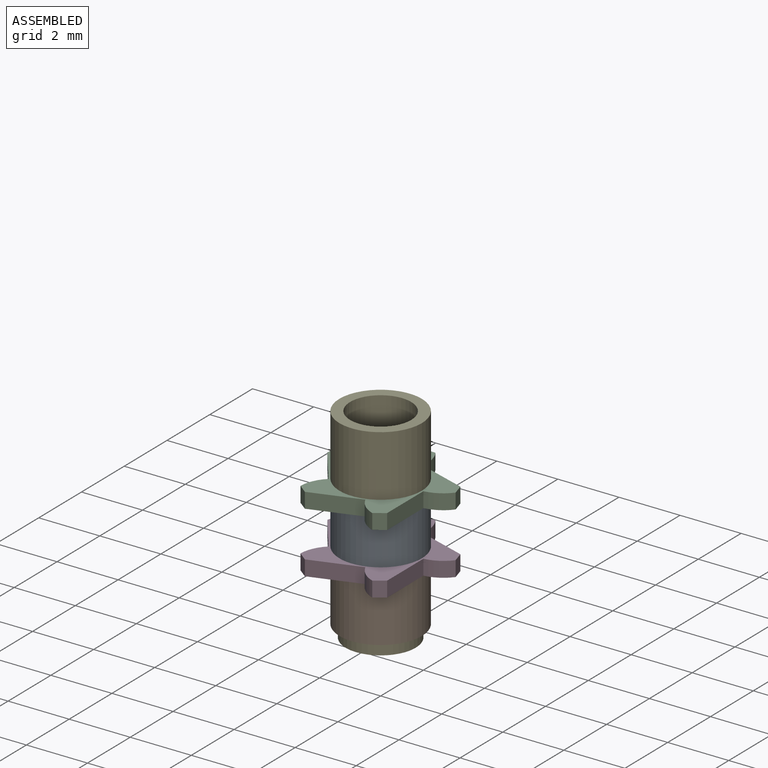
[diagram: assembled view]
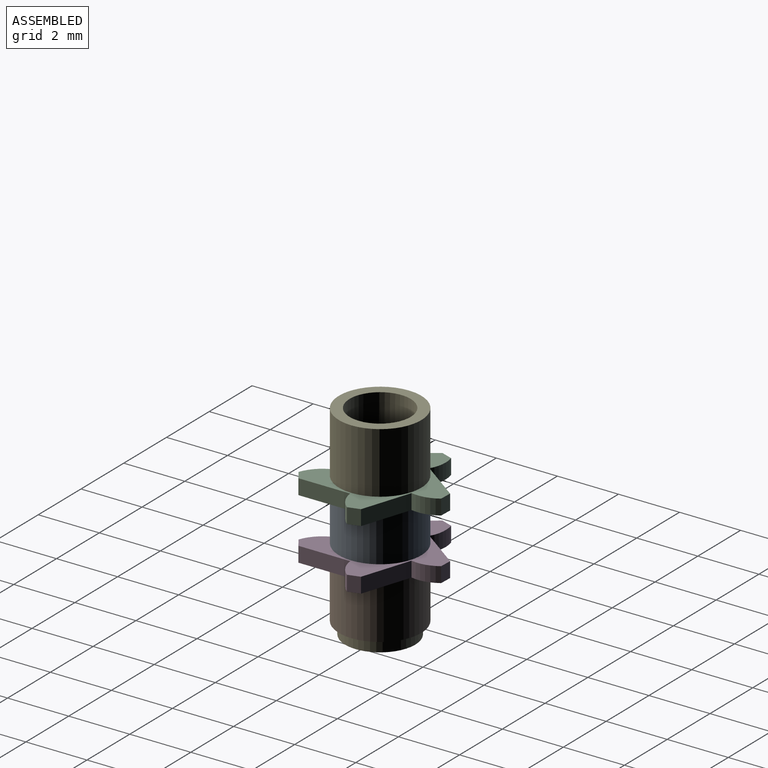
[diagram: assembled view, second angle]
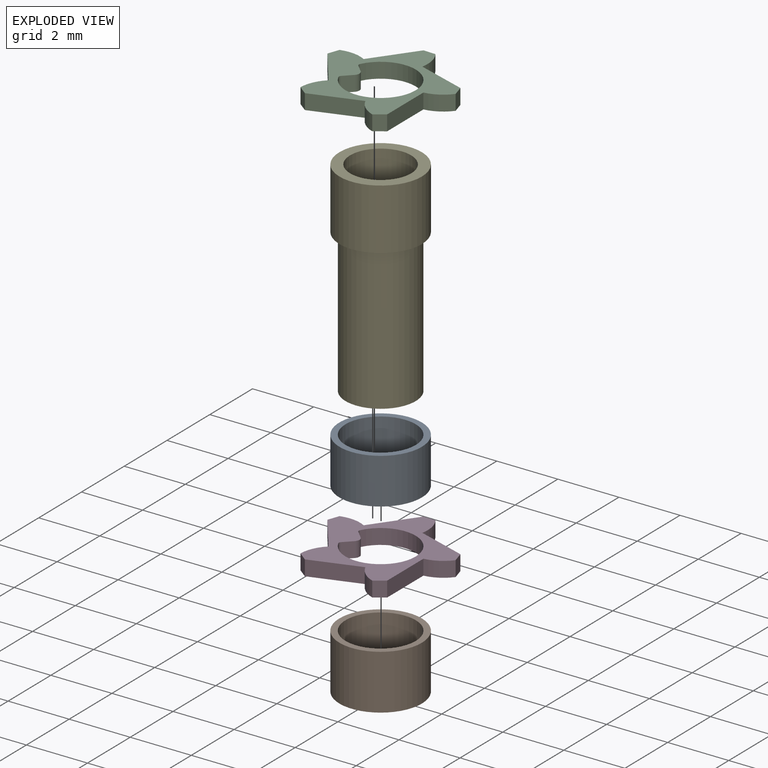
[diagram: exploded view]
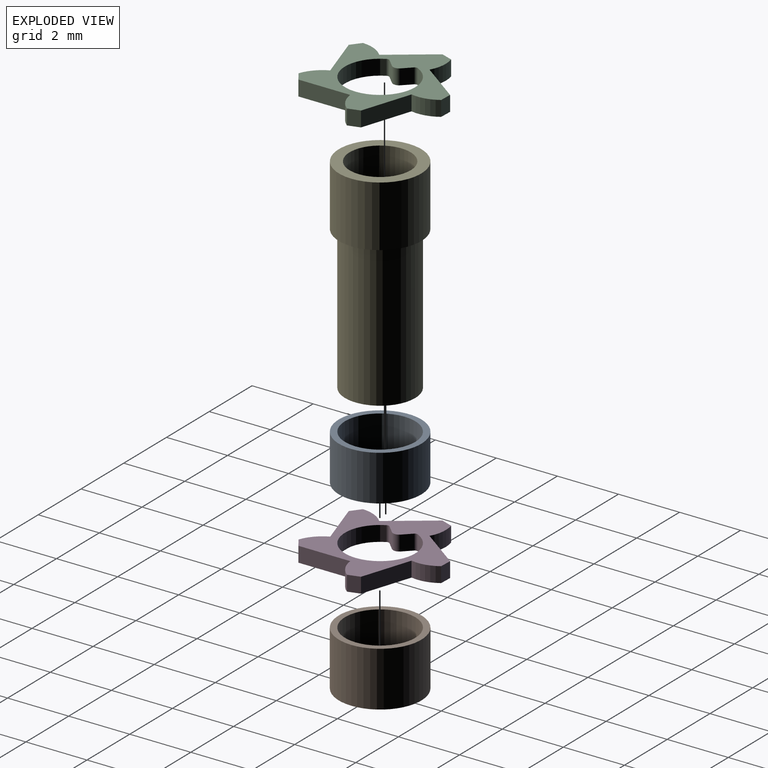
[diagram: exploded view, second angle]
ASSEMBLY  parts=5 mates=4
PART A: 4 faces, bbox 2.7x2.7x1.5 mm
  f0: cylinder r=1.15mm len=2.3mm, axis (0,0,-1), area 10.8mm2, adj f2,f3
  f1: cylinder r=1.35mm len=2.7mm, axis (0,0,-1), area 12.7mm2, adj f2,f3
  f2: plane 2.7x2.7mm, normal (0,0,1), area 1.6mm2, adj f0,f1
  f3: plane 2.7x2.7mm, normal (0,0,-1), area 1.6mm2, adj f0,f1
PART B: 4 faces, bbox 2.7x2.7x1.8 mm
  f0: cylinder r=1.15mm len=2.3mm, axis (0,0,-1), area 13mm2, adj f2,f3
  f1: cylinder r=1.35mm len=2.7mm, axis (0,0,-1), area 15.3mm2, adj f2,f3
  f2: plane 2.7x2.7mm, normal (0,0,1), area 1.6mm2, adj f0,f1
  f3: plane 2.7x2.7mm, normal (0,0,-1), area 1.6mm2, adj f0,f1
PART C: 23 faces, bbox 4.3x4.1x0.5 mm
  f0: plane 0.5x0.26mm, normal (0.71,-0.71,0), area 0.2mm2, adj f1,f20,f21,f22
  f1: cylinder r=0.2mm len=0.5mm, axis (0,0,-1), area 0.2mm2, adj f0,f2,f21,f22
  f2: plane 0.5x0.26mm, normal (0.71,0.71,0), area 0.2mm2, adj f1,f3,f21,f22
  f3: cylinder r=0.1mm len=0.5mm, axis (0,0,-1), area 0.1mm2, adj f2,f4,f21,f22
  f4: cylinder r=1.15mm len=2.3mm, axis (0,0,-1), area 3.1mm2, adj f3,f20,f21,f22
  f5: plane 0.5x0.4mm, normal (0.03,1,0), area 0.2mm2, adj f6,f19,f21,f22
  f6: plane 1.37x1mm, normal (-0.81,0.59,0), area 0.8mm2, adj f5,f7,f21,f22
  f7: cylinder r=1.12mm len=0.86mm, axis (0,0,-1), area 0.4mm2, adj f6,f8,f21,f22
  f8: plane 0.5x0.38mm, normal (-0.94,0.34,0), area 0.2mm2, adj f7,f9,f21,f22
  f9: plane 1.37x1mm, normal (-0.81,-0.59,0), area 0.8mm2, adj f8,f10,f21,f22
  f10: cylinder r=1.12mm len=0.79mm, axis (0,0,-1), area 0.4mm2, adj f9,f11,f21,f22
  f11: plane 0.5x0.32mm, normal (-0.61,-0.79,0), area 0.2mm2, adj f10,f12,f21,f22
  f12: plane 1.61x0.52mm, normal (0.31,-0.95,0), area 0.8mm2, adj f11,f13,f21,f22
  f13: cylinder r=1.12mm len=0.64mm, axis (0,0,-1), area 0.4mm2, adj f12,f14,f21,f22
  f14: plane 0.5x0.33mm, normal (0.56,-0.83,0), area 0.2mm2, adj f13,f15,f21,f22
  f15: plane 1.7x0.5mm, normal (1,0,0), area 0.8mm2, adj f14,f16,f21,f22
  f16: cylinder r=1.12mm len=0.76mm, axis (0,0,-1), area 0.4mm2, adj f15,f17,f21,f22
  f17: plane 0.5x0.38mm, normal (0.96,0.28,0), area 0.2mm2, adj f16,f18,f21,f22
  f18: plane 1.61x0.52mm, normal (0.31,0.95,0), area 0.8mm2, adj f17,f19,f21,f22
  f19: cylinder r=1.12mm len=0.85mm, axis (0,0,-1), area 0.4mm2, adj f5,f18,f21,f22
  f20: cylinder r=0.1mm len=0.5mm, axis (0,0,-1), area 0.1mm2, adj f0,f4,f21,f22
  f21: plane 4.29x4.12mm, normal (0,0,1), area 6mm2, adj f0,f1,f2,f3,f4,f5,f6,f7
  f22: plane 4.29x4.12mm, normal (0,0,-1), area 6mm2, adj f0,f1,f2,f3,f4,f5,f6,f7
PART D: same geometry as C
PART E: 17 faces, bbox 2.7x2.7x6.7 mm
  f0: plane 2.7x2.7mm, normal (0,0,-1), area 1.7mm2, adj f1,f2,f9,f10,f11,f12,f13
  f1: cylinder r=1mm len=6.7mm, axis (0,0,-1), area 37mm2, adj f0,f3,f4,f14,f15,f16
  f2: cylinder r=1.35mm len=2.7mm, axis (0,0,-1), area 17mm2, adj f0,f3
  f3: plane 2.7x2.7mm, normal (0,0,1), area 2.6mm2, adj f1,f2
  f4: cylinder r=0.05mm len=4.7mm, axis (0,0,1), area 0.3mm2, adj f1,f5,f15,f16
  f5: plane 4.7x0.24mm, normal (0.71,0.71,0), area 1.6mm2, adj f4,f6,f15,f16
  f6: cylinder r=0.3mm len=4.7mm, axis (0,0,1), area 2.2mm2, adj f5,f7,f15,f16
  f7: plane 4.7x0.24mm, normal (0.71,-0.71,0), area 1.6mm2, adj f6,f14,f15,f16
  f8: cylinder r=0.15mm len=4.7mm, axis (0,0,1), area 1.1mm2, adj f9,f13,f15,f16
  f9: plane 4.7x0.24mm, normal (-0.71,-0.71,0), area 1.6mm2, adj f0,f8,f10,f15,f16
  f10: cylinder r=0.2mm len=4.7mm, axis (0,0,1), area 1.2mm2, adj f0,f9,f11,f15
  f11: cylinder r=1.15mm len=4.7mm, axis (0,0,1), area 28.1mm2, adj f0,f10,f12,f15
  f12: cylinder r=0.2mm len=4.7mm, axis (0,0,1), area 1.2mm2, adj f0,f11,f13,f15
  f13: plane 4.7x0.24mm, normal (-0.71,0.71,0), area 1.6mm2, adj f0,f8,f12,f15,f16
  f14: cylinder r=0.05mm len=4.7mm, axis (0,0,1), area 0.3mm2, adj f1,f7,f15,f16
  f15: plane 2.3x2.17mm, normal (0,0,-1), area 1mm2, adj f1,f4,f5,f6,f7,f8,f9,f10
  f16: plane 1.03x0.42mm, normal (0,0,1), area 0.2mm2, adj f1,f4,f5,f6,f7,f8,f9,f13
PLACE A t=(0,0,-2)mm
PLACE B t=(0,0,-4.3)mm
PLACE C t=(0,0,-0.5)mm
PLACE D t=(0,0,-2.5)mm
PLACE E at identity fixed
MATE fastened C.f4 <-> A.f0  axis (0,0,-1) through (0,0,-0.5)mm
MATE fastened D.f4 <-> A.f0  axis (0,0,-1) through (0,0,-2)mm
MATE fastened B.f0 <-> D.f4  axis (0,0,-1) through (0,0,-2.5)mm
MATE fastened E.f1 <-> C.f4  axis (0,0,1) through (0,0,0)mm
